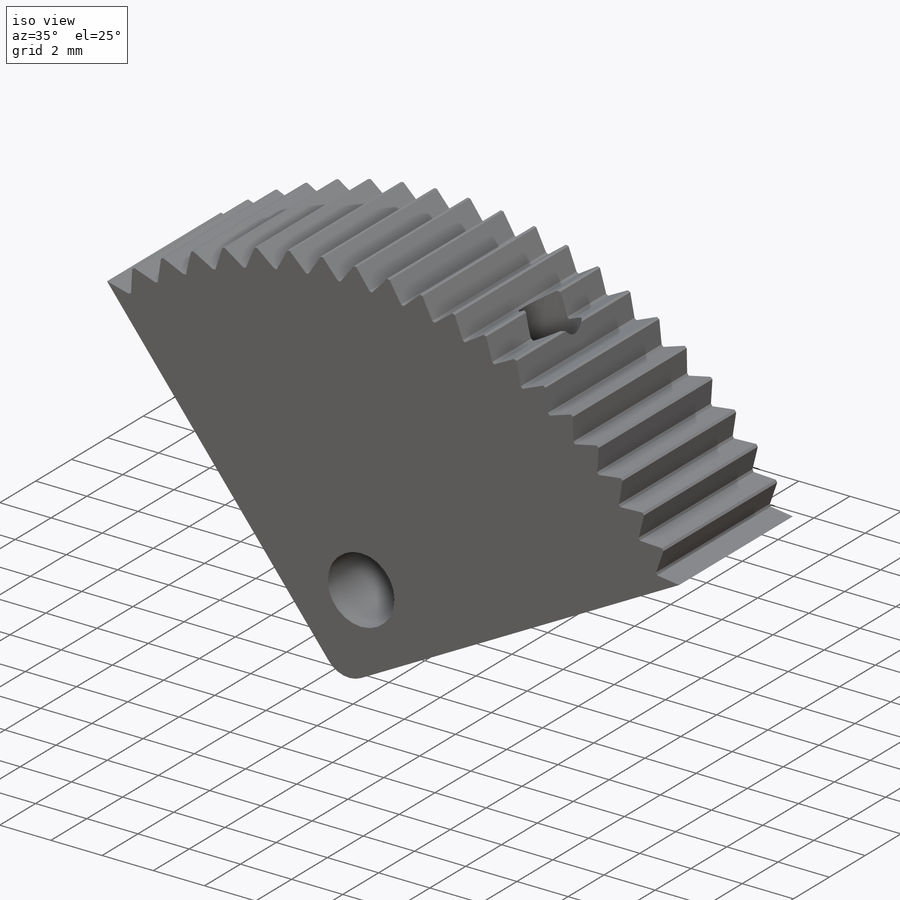
[diagram: iso view]
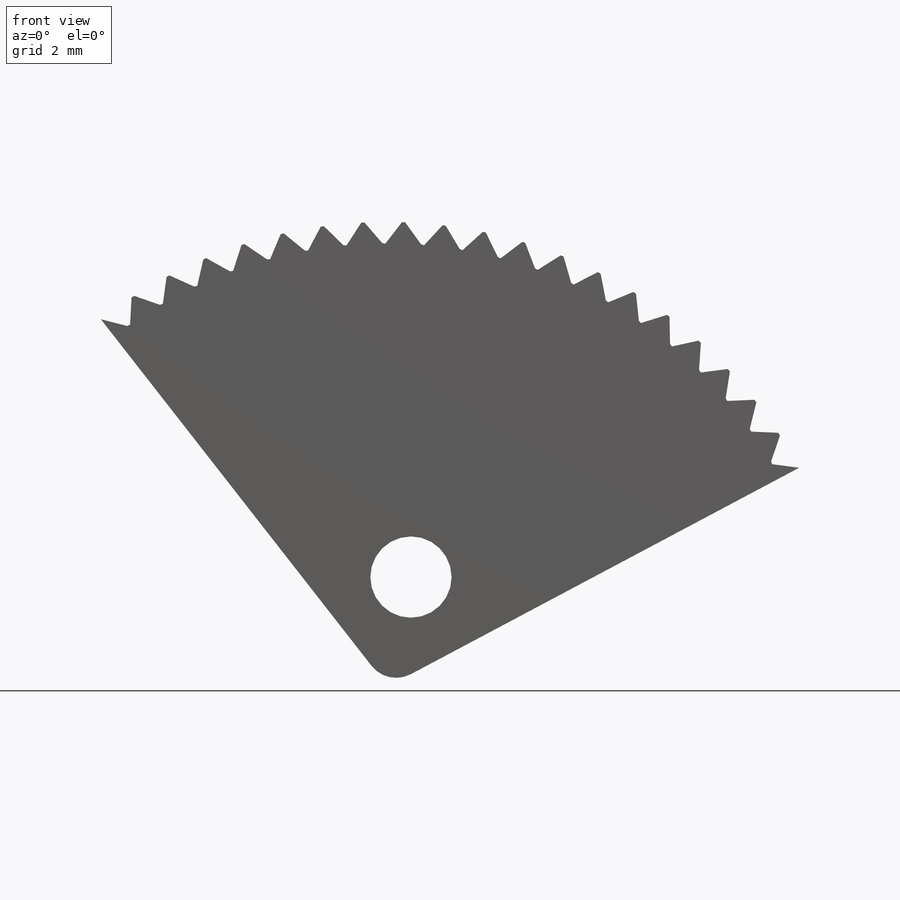
[diagram: front view]
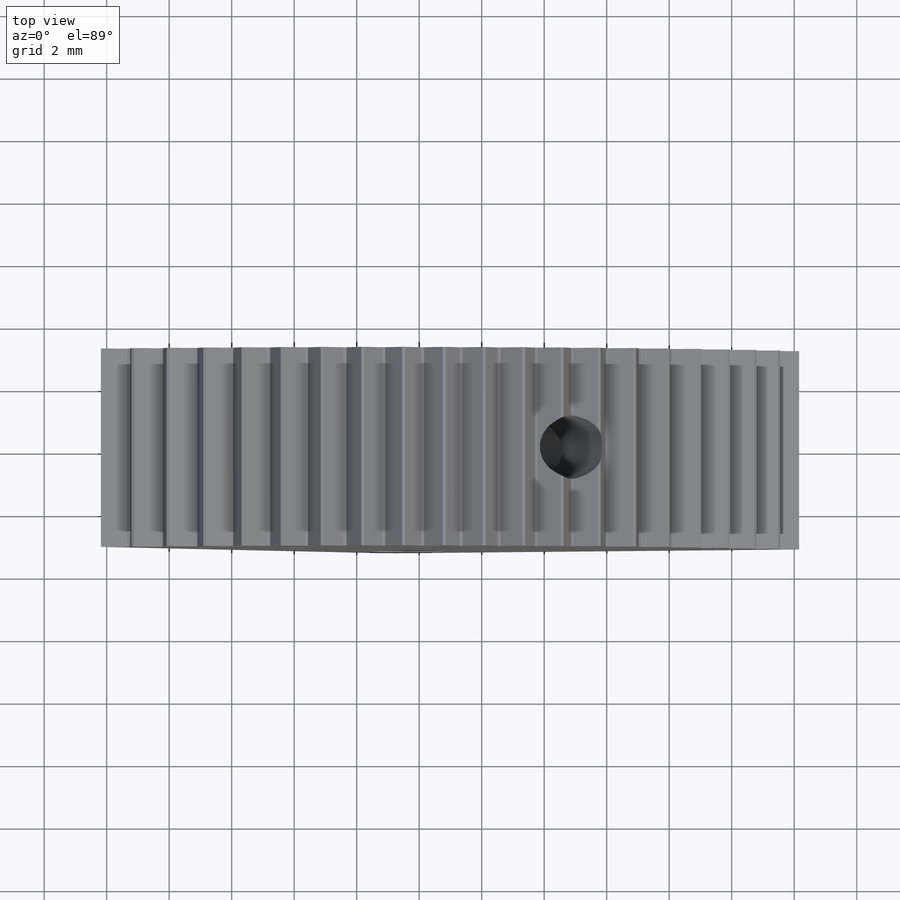
[diagram: top view]
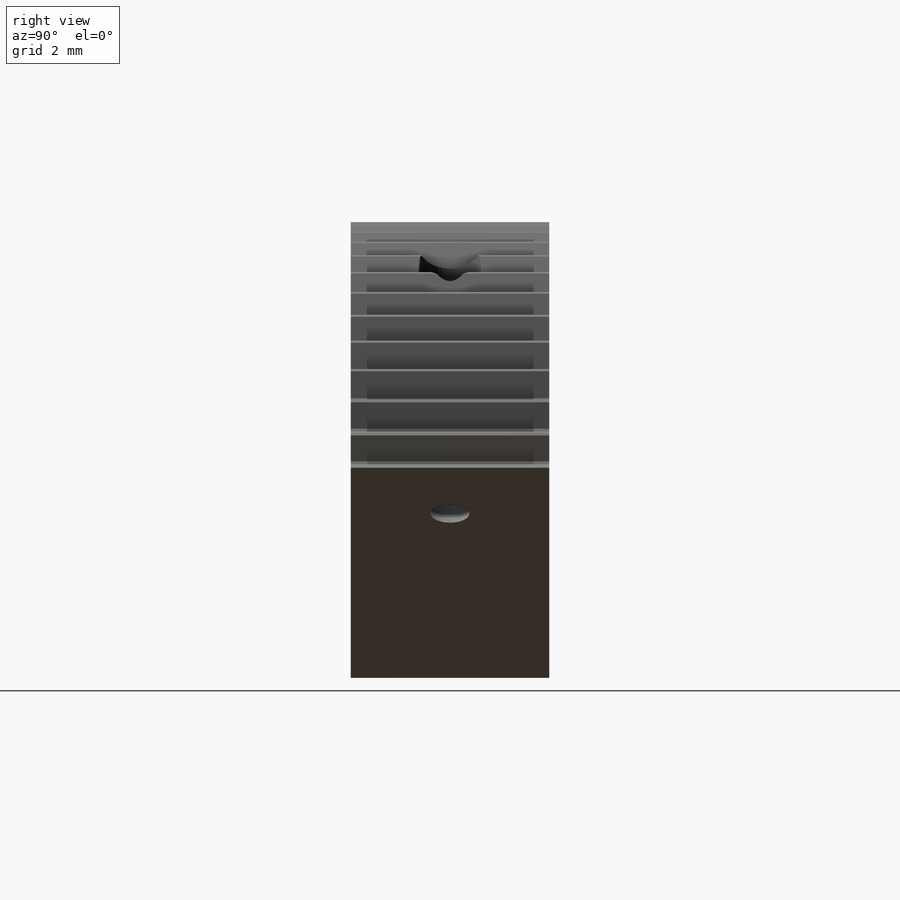
[diagram: right view]
SOLIDWORKS PART (.sldprt)
format: sldprt  version: not decoded by parser v0  size: 345,600 bytes
history: native  units: mm
features: sketch x5, cut_extrude x2, material x1, extrude x1, plane x1, sweep x1 (+13 scaffold rows collapsed)
feature tree (24):
  scaffold x13  (default folders/planes/origin — collapsed)
  material  "Material <not specified>"
  sketch  "Sketch1"  dims[c1.D3=1.0mm c1.D6=2.6mm c1.D2=15.0mm c1.D7=15.0mm c1.D1=~69.423694mm c2.D1=100.0deg c2.D2=10.0mm c2.D3=~0.00185mm c2.D7=~1.694779mm c3.D2=~0.385752mm c3.D4=~18.293831mm c4.D4=60.0deg c5.D4=~0.080537mm c5.D2=~18.619446mm c6.D2=40.0deg c6.D4=~2.757221mm c6.D5=4.0mm c6.D6=~3.273468mm c7.D2=~18.088758mm c8.D2=40.0deg c8.D4=~3.119564mm c8.D5=0.3mm]
  extrude  "Boss-Extrude1"  Depth=3.175mm
  sketch  "Sketch2"  dims[D1=5.0mm D2=2.5mm D3=4.0mm]
  plane  "Plane1"
  sketch  "Sketch4"  dims[D1=1.25mm]
  sweep  "Cut-Sweep1"
  sketch  "Sketch3"  dims[D1=2.032mm D2=~7.124456mm]
  cut_extrude  "Cut-Extrude2"  Depth=7.25mm
  sketch  "Sketch5"  dims[c1.D2=~10.116179mm c1.D1=9.1609mm c2.D1=5.0deg c2.D2=~1.569832mm c2.D3=0.1mm c2.D4=~0.673688mm c2.D5=~0.859549mm c3.D5=~128.242995deg c3.D2=20.0]
  cut_extrude  "Cut-Extrude3"  Depth=10mm
decode coverage: 8 of 9 modeling features carry decoded parameters
note: ~ marks probable driven/reference dimensions
note: suppression state not decoded; provenance and decode notes live in map.json
